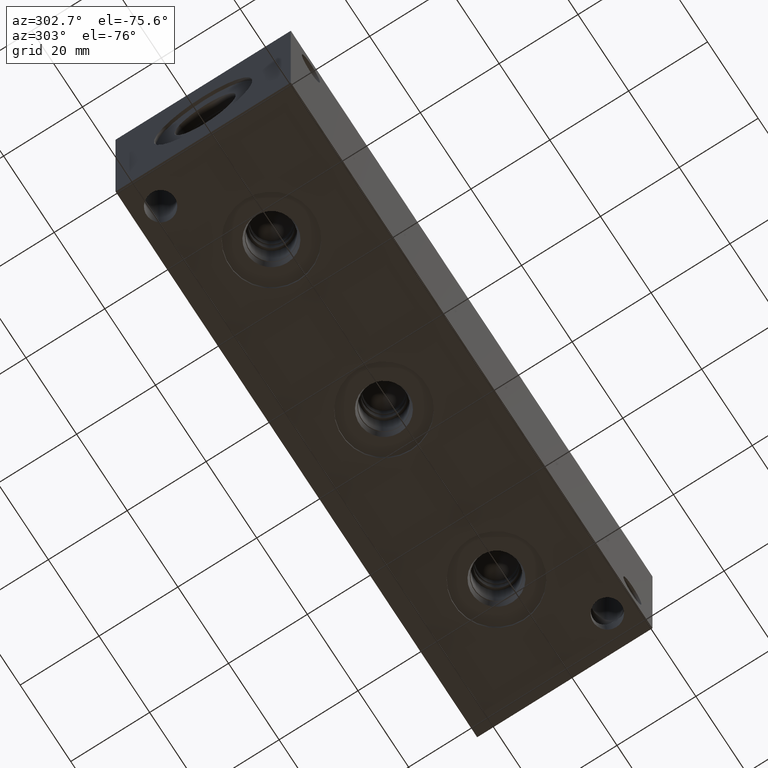
[diagram: clean part render]
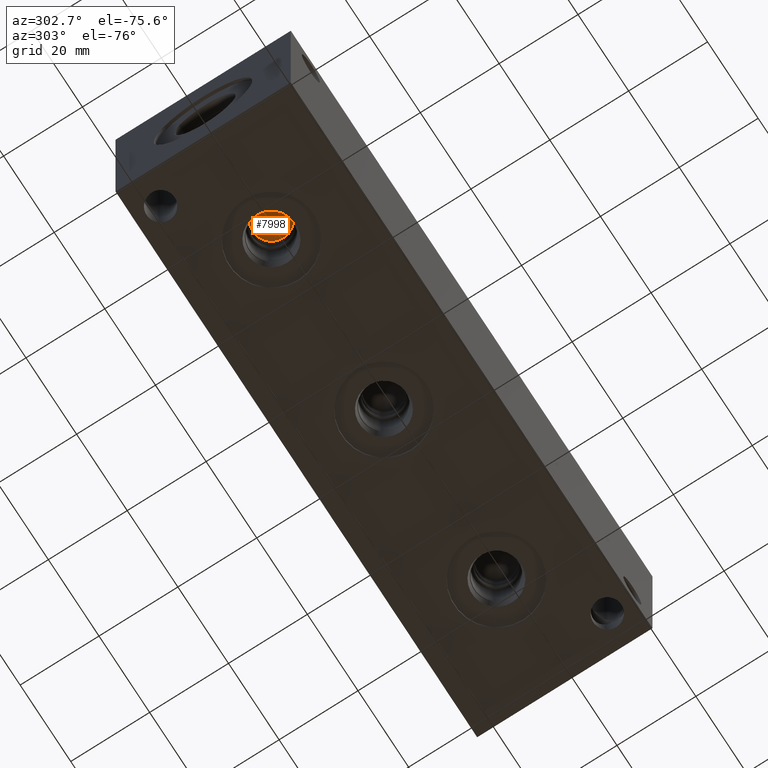
[diagram: same view with one face highlighted and labeled with its STEP entity id]
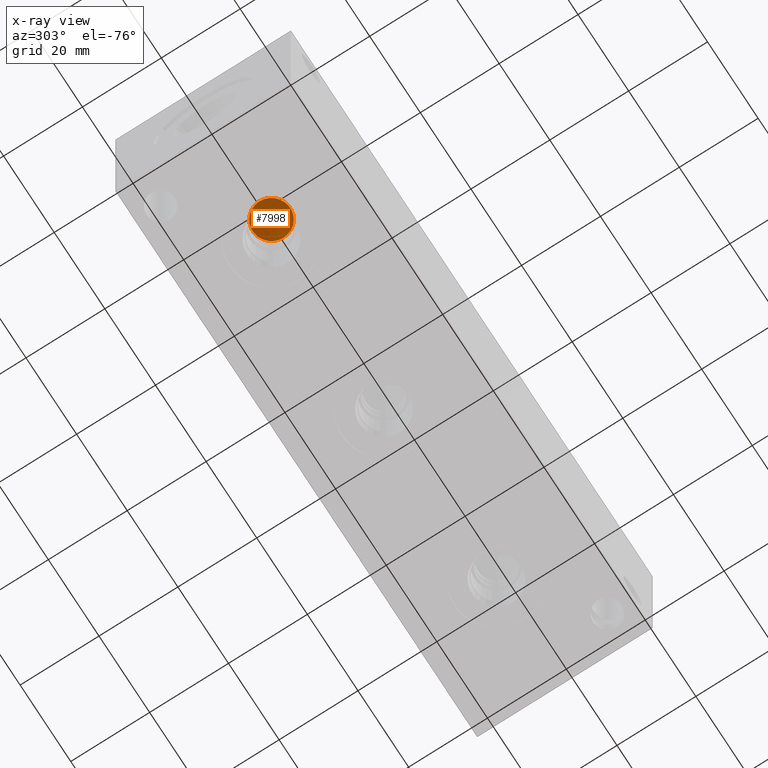
[diagram: x-ray of the same camera — body ghosted, the highlighted face saturated]
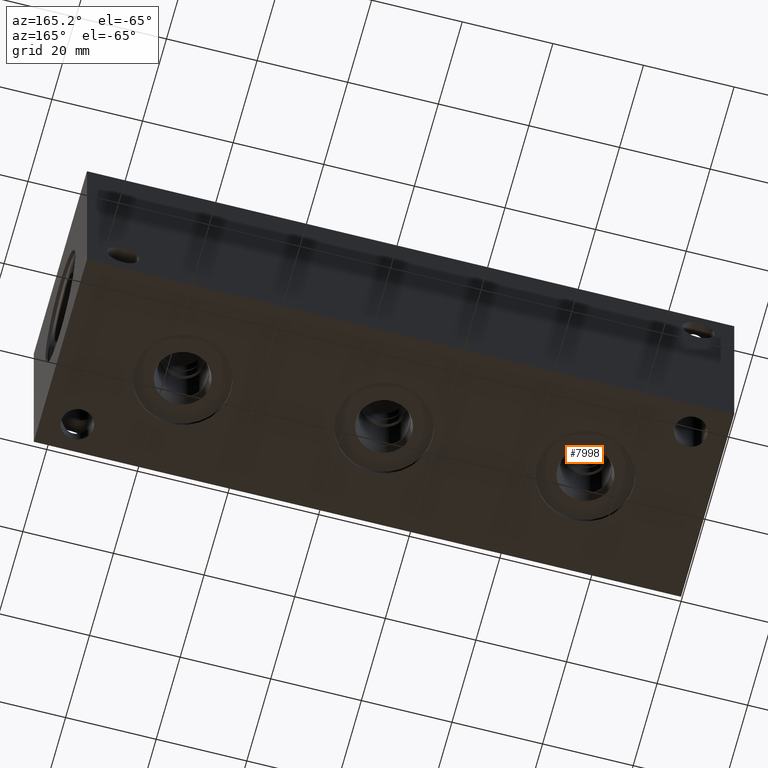
[diagram: same view with one face highlighted and labeled with its STEP entity id]
A machine part, auxiliary view. The second image highlights one B-rep face of the part: STEP entity #7998.
The next image is the same camera in x-ray: the body ghosted, the highlighted face saturated — about 32% of this face is hidden behind the body in this view.
A second angle (auxiliary view) of the same face is appended — the face is thin or edge-on in the first view.
In plain terms, the highlighted conical surface has half-angle 60 deg.
Its self-contained STEP definition (entity closure, byte-faithful):
#27=CONICAL_SURFACE('',#8358,2.38125,1.0471975511966);
#127=CIRCLE('',#8359,4.7625);
#128=CIRCLE('',#8360,4.7625);
#935=FACE_OUTER_BOUND('',#1384,.T.);
#1384=EDGE_LOOP('',(#6680,#6681,#6682,#6683));
#2179=LINE('',#13439,#2937);
#2937=VECTOR('',#9785,2.38125);
#3627=VERTEX_POINT('',#13435);
#3628=VERTEX_POINT('',#13436);
#3629=VERTEX_POINT('',#13438);
#4678=EDGE_CURVE('',#3627,#3628,#127,.T.);
#4679=EDGE_CURVE('',#3628,#3629,#2179,.T.);
#4680=EDGE_CURVE('',#3628,#3627,#128,.T.);
#6680=ORIENTED_EDGE('',*,*,#4678,.T.);
#6681=ORIENTED_EDGE('',*,*,#4679,.T.);
#6682=ORIENTED_EDGE('',*,*,#4679,.F.);
#6683=ORIENTED_EDGE('',*,*,#4680,.T.);
#7998=ADVANCED_FACE('',(#935),#27,.F.);
#8358=AXIS2_PLACEMENT_3D('',#13434,#9781,#9782);
#8359=AXIS2_PLACEMENT_3D('',#13437,#9783,#9784);
#8360=AXIS2_PLACEMENT_3D('',#13440,#9786,#9787);
#9781=DIRECTION('center_axis',(0.,0.,-1.));
#9782=DIRECTION('ref_axis',(1.,0.,0.));
#9783=DIRECTION('center_axis',(0.,0.,-1.));
#9784=DIRECTION('ref_axis',(1.,0.,0.));
#9785=DIRECTION('',(0.866025403784439,-1.06057523872491E-16,0.5));
#9786=DIRECTION('center_axis',(0.,0.,-1.));
#9787=DIRECTION('ref_axis',(1.,0.,0.));
#13434=CARTESIAN_POINT('Origin',(26.9748,22.225,18.9864053285078));
#13435=CARTESIAN_POINT('',(31.7373,22.225,17.61159));
#13436=CARTESIAN_POINT('',(22.2123,22.225,17.61159));
#13437=CARTESIAN_POINT('Origin',(26.9748,22.225,17.61159));
#13438=CARTESIAN_POINT('',(26.9748,22.225,20.3612206570156));
#13439=CARTESIAN_POINT('',(24.59355,22.225,18.9864053285078));
#13440=CARTESIAN_POINT('Origin',(26.9748,22.225,17.61159));